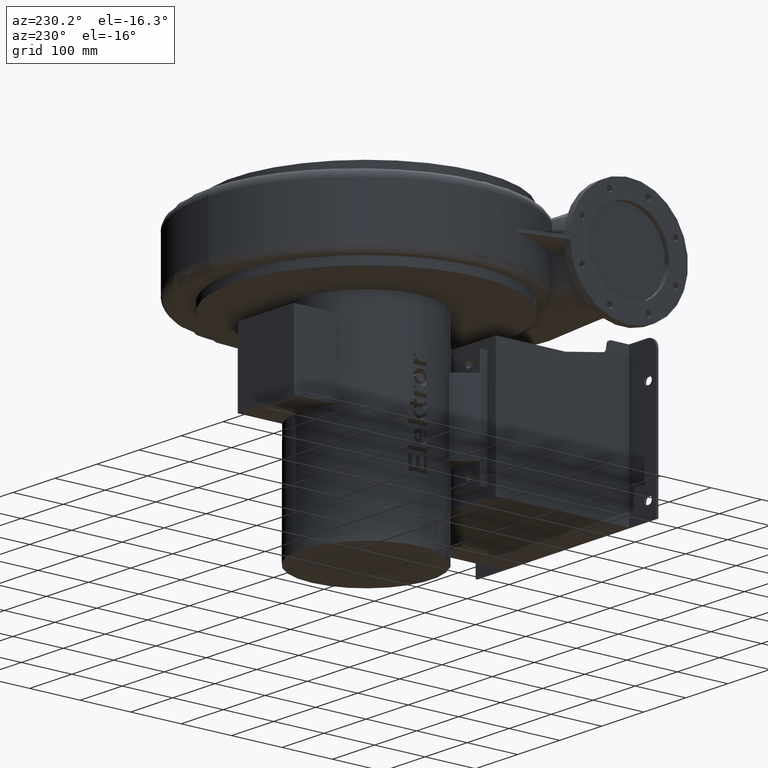
[diagram: clean part render]
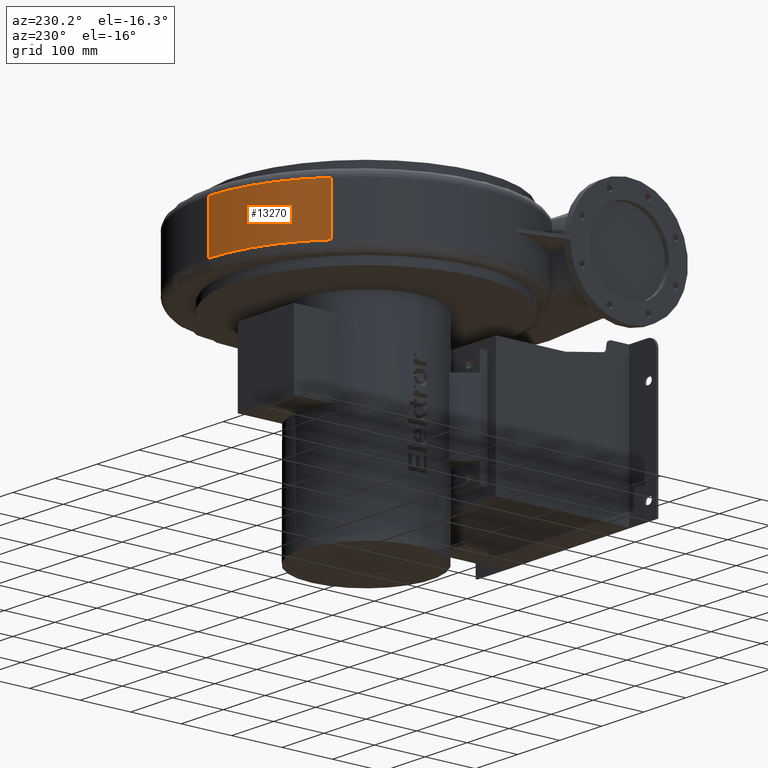
[diagram: same view with one face highlighted and labeled with its STEP entity id]
A machine part, auxiliary view. The second image highlights one B-rep face of the part: STEP entity #13270.
In plain terms, the highlighted cylindrical surface (partial cylindrical patch) has radius 285 mm, axis along (0, 0, 1).
Its self-contained STEP definition (entity closure, byte-faithful):
#1188=LINE('',#22864,#2360);
#1189=LINE('',#22865,#2361);
#2360=VECTOR('',#16528,99.);
#2361=VECTOR('',#16529,99.);
#3161=CYLINDRICAL_SURFACE('',#13985,285.);
#3812=FACE_OUTER_BOUND('',#4634,.T.);
#4634=EDGE_LOOP('',(#11253,#11254,#11255,#11256));
#4909=CIRCLE('',#13980,285.);
#4913=CIRCLE('',#13986,285.);
#6094=VERTEX_POINT('',#22815);
#6096=VERTEX_POINT('',#22821);
#6101=VERTEX_POINT('',#22861);
#6102=VERTEX_POINT('',#22862);
#7840=EDGE_CURVE('',#6094,#6096,#4909,.T.);
#7847=EDGE_CURVE('',#6101,#6102,#4913,.T.);
#7848=EDGE_CURVE('',#6101,#6096,#1188,.T.);
#7849=EDGE_CURVE('',#6102,#6094,#1189,.T.);
#11253=ORIENTED_EDGE('',*,*,#7847,.F.);
#11254=ORIENTED_EDGE('',*,*,#7848,.T.);
#11255=ORIENTED_EDGE('',*,*,#7840,.F.);
#11256=ORIENTED_EDGE('',*,*,#7849,.F.);
#13270=ADVANCED_FACE('',(#3812),#3161,.T.);
#13980=AXIS2_PLACEMENT_3D('',#22822,#16514,#16515);
#13985=AXIS2_PLACEMENT_3D('',#22860,#16524,#16525);
#13986=AXIS2_PLACEMENT_3D('',#22863,#16526,#16527);
#16514=DIRECTION('center_axis',(2.21867473071667E-15,4.67343487721603E-16,
1.));
#16515=DIRECTION('ref_axis',(-0.373383455282054,0.92767709647357,3.94872587356564E-16));
#16524=DIRECTION('center_axis',(2.21867473071667E-15,4.67343487721603E-16,
1.));
#16525=DIRECTION('ref_axis',(-5.41233724504767E-15,1.,-4.67343487721591E-16));
#16526=DIRECTION('center_axis',(-2.21867473071667E-15,-4.67343487721603E-16,
-1.));
#16527=DIRECTION('ref_axis',(-0.373383455282054,0.92767709647357,3.94872587356564E-16));
#16528=DIRECTION('',(2.21867473071667E-15,4.67343487721603E-16,1.));
#16529=DIRECTION('',(2.21867473071667E-15,4.67343487721603E-16,1.));
#22815=CARTESIAN_POINT('',(14.9999999999978,699.999999999999,432.499999999998));
#22821=CARTESIAN_POINT('',(-182.436189410375,620.533333333331,432.499999999998));
#22822=CARTESIAN_POINT('Origin',(14.9999999999993,414.999999999999,432.499999999998));
#22860=CARTESIAN_POINT('Origin',(14.9999999999992,414.999999999999,382.999999999998));
#22861=CARTESIAN_POINT('',(-182.436189410375,620.533333333331,333.499999999998));
#22862=CARTESIAN_POINT('',(14.9999999999976,699.999999999999,333.499999999998));
#22863=CARTESIAN_POINT('Origin',(14.9999999999991,414.999999999999,333.499999999998));
#22864=CARTESIAN_POINT('',(-182.436189410375,620.533333333331,382.999999999998));
#22865=CARTESIAN_POINT('',(14.9999999999977,699.999999999999,382.999999999998));